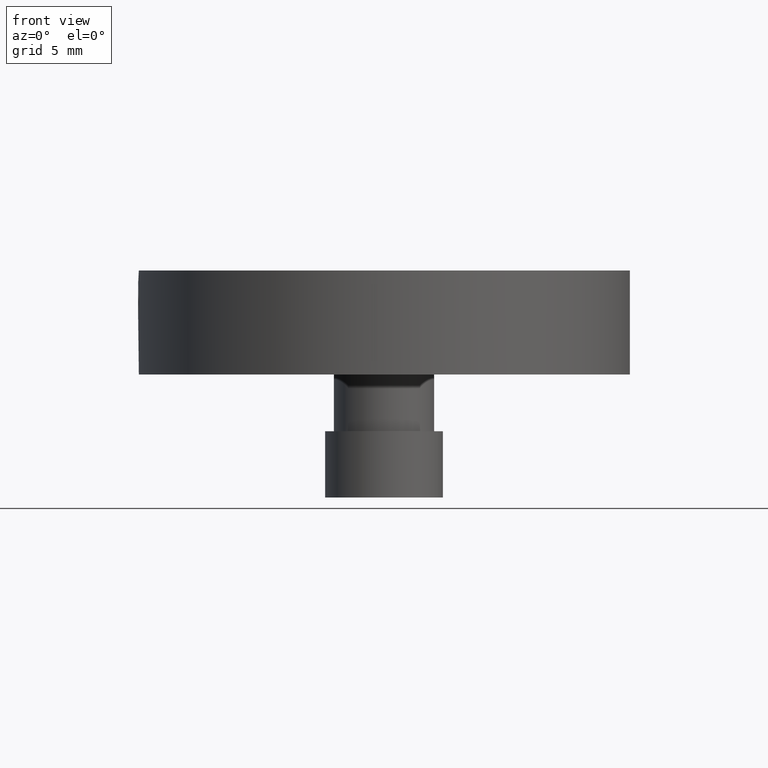
[diagram: clean part render]
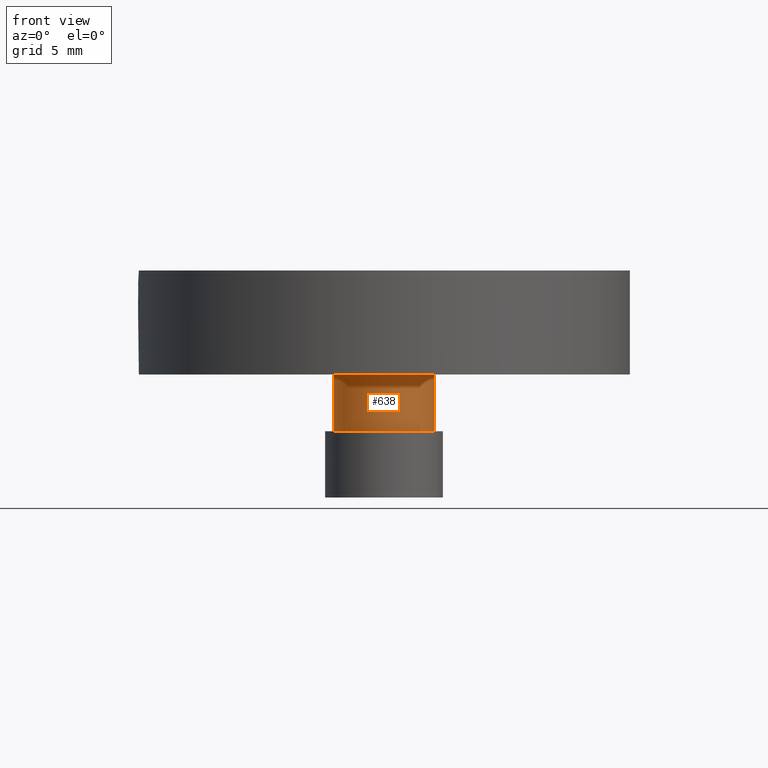
[diagram: same view with one face highlighted and labeled with its STEP entity id]
A machine part, front view. The second image highlights one B-rep face of the part: STEP entity #638.
In plain terms, the highlighted cylindrical surface (bore or boss wall) has radius 2.65 mm, axis along (-0, -0, 1).
Its self-contained STEP definition (entity closure, byte-faithful):
#13 = DIRECTION ( 'NONE',  ( -1.000000000000000000, 0.0000000000000000000, 0.0000000000000000000 ) ) ;
#24 = DIRECTION ( 'NONE',  ( 1.000000000000000000, 0.0000000000000000000, 0.0000000000000000000 ) ) ;
#60 = CARTESIAN_POINT ( 'NONE',  ( -1.822524619646406000, -1.515573104758408500, 23.50000000000000000 ) ) ;
#89 = FACE_OUTER_BOUND ( 'NONE', #882, .T. ) ;
#105 = AXIS2_PLACEMENT_3D ( 'NONE', #60, #750, #13 ) ;
#106 = CARTESIAN_POINT ( 'NONE',  ( -1.822524619646406000, -1.515573104758408500, 26.50000000000000400 ) ) ;
#158 = CIRCLE ( 'NONE', #105, 2.649999999999999500 ) ;
#162 = FACE_OUTER_BOUND ( 'NONE', #525, .T. ) ;
#189 = DIRECTION ( 'NONE',  ( -0.0000000000000000000, -0.0000000000000000000, 1.000000000000000000 ) ) ;
#214 = CARTESIAN_POINT ( 'NONE',  ( 0.8274753803535939100, -1.515573104758408500, 26.50000000000000400 ) ) ;
#242 = ORIENTED_EDGE ( 'NONE', *, *, #476, .F. ) ;
#246 = CIRCLE ( 'NONE', #571, 2.649999999999999900 ) ;
#315 = AXIS2_PLACEMENT_3D ( 'NONE', #1076, #189, #24 ) ;
#346 = DIRECTION ( 'NONE',  ( -0.0000000000000000000, -0.0000000000000000000, -1.000000000000000000 ) ) ;
#450 = CYLINDRICAL_SURFACE ( 'NONE', #315, 2.649999999999999900 ) ;
#463 = CARTESIAN_POINT ( 'NONE',  ( -4.472524619646405200, -1.515573104758408500, 23.50000000000000000 ) ) ;
#476 = EDGE_CURVE ( 'NONE', #781, #781, #158, .T. ) ;
#500 = EDGE_CURVE ( 'NONE', #782, #782, #246, .T. ) ;
#525 = EDGE_LOOP ( 'NONE', ( #242 ) ) ;
#571 = AXIS2_PLACEMENT_3D ( 'NONE', #106, #346, #987 ) ;
#638 = ADVANCED_FACE ( 'NONE', ( #162, #89 ), #450, .T. ) ;
#707 = ORIENTED_EDGE ( 'NONE', *, *, #500, .T. ) ;
#750 = DIRECTION ( 'NONE',  ( 0.0000000000000000000, 0.0000000000000000000, -1.000000000000000000 ) ) ;
#781 = VERTEX_POINT ( 'NONE', #463 ) ;
#782 = VERTEX_POINT ( 'NONE', #214 ) ;
#882 = EDGE_LOOP ( 'NONE', ( #707 ) ) ;
#987 = DIRECTION ( 'NONE',  ( 1.000000000000000000, 0.0000000000000000000, 0.0000000000000000000 ) ) ;
#1076 = CARTESIAN_POINT ( 'NONE',  ( -1.822524619646406000, -1.515573104758408500, 23.50000000000000000 ) ) ;